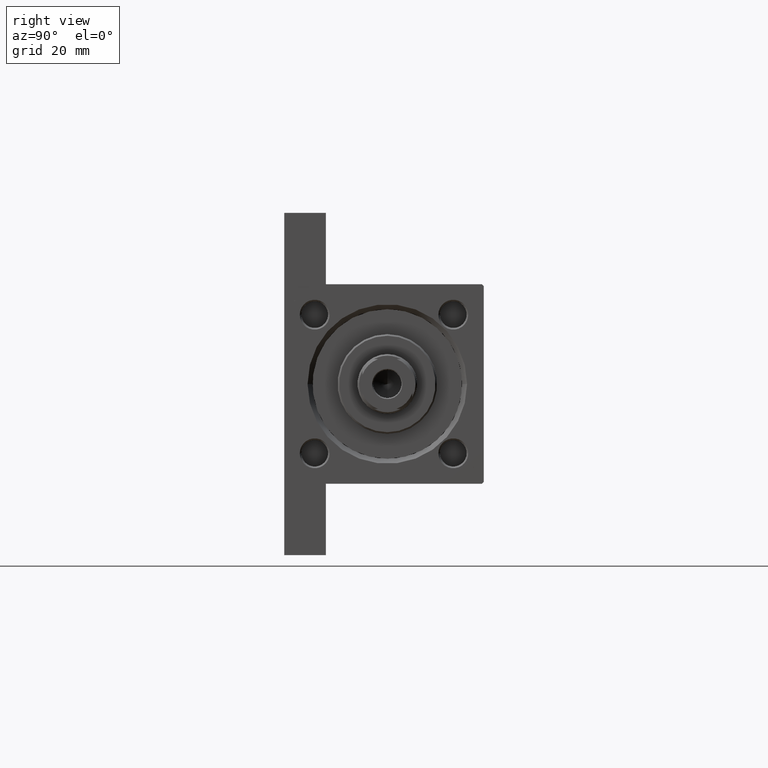
[diagram: clean part render]
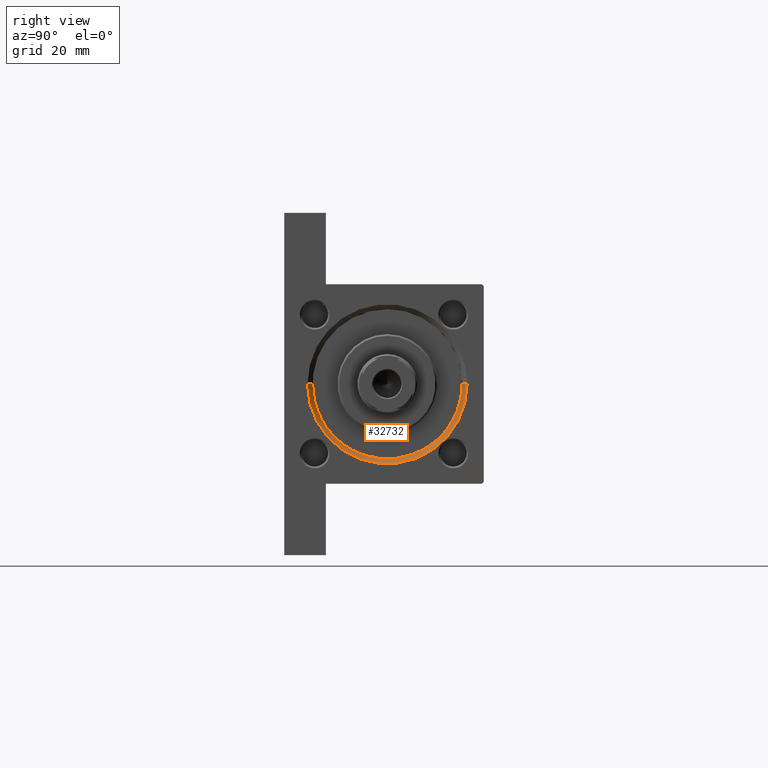
[diagram: same view with one face highlighted and labeled with its STEP entity id]
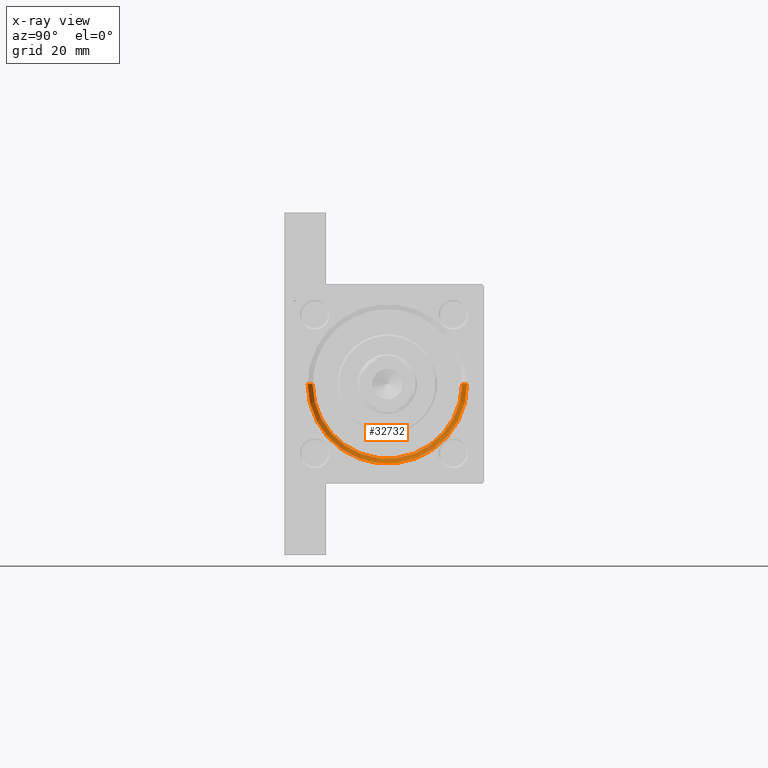
[diagram: x-ray of the same camera — body ghosted, the highlighted face saturated]
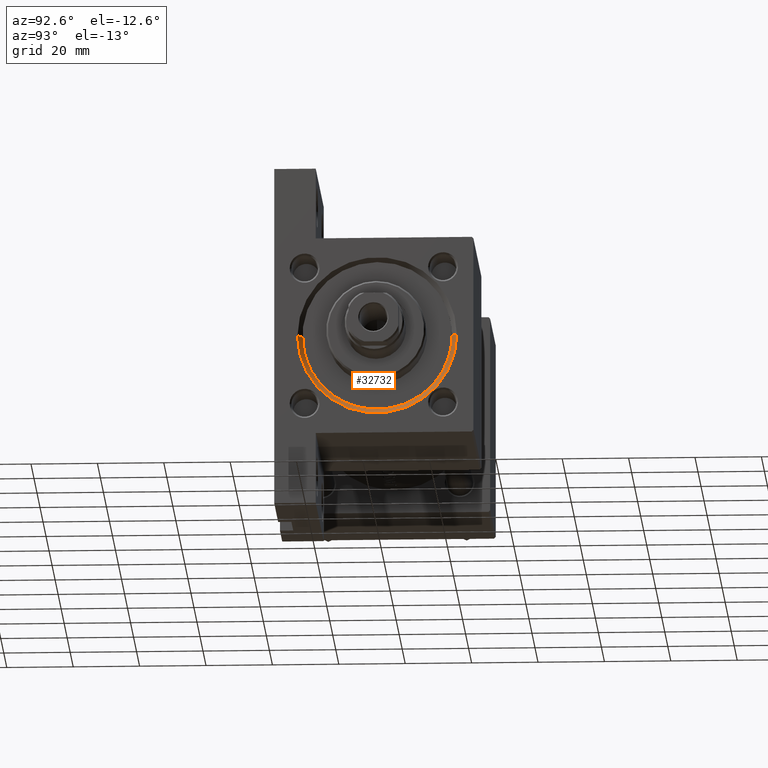
[diagram: same view with one face highlighted and labeled with its STEP entity id]
A machine part, right view. The second image highlights one B-rep face of the part: STEP entity #32732.
The next image is the same camera in x-ray: the body ghosted, the highlighted face saturated — about 0% of this face is hidden behind the body in this view.
A second angle (auxiliary view) of the same face is appended — the face is thin or edge-on in the first view.
In plain terms, the highlighted conical surface has half-angle 45 deg.
Its self-contained STEP definition (entity closure, byte-faithful):
#2103 = CIRCLE ( 'NONE', #28116, 22.50000000000000355 ) ;
#2372 = AXIS2_PLACEMENT_3D ( 'NONE', #14272, #2926, #7377 ) ;
#2926 = DIRECTION ( 'NONE',  ( 1.000000000000000000, 0.000000000000000000, 0.000000000000000000 ) ) ;
#3820 = CARTESIAN_POINT ( 'NONE',  ( 146.4999999999999432, 2.755455298081545172E-15, 23.50000000000001066 ) ) ;
#5311 = AXIS2_PLACEMENT_3D ( 'NONE', #19996, #16059, #30598 ) ;
#5922 = VECTOR ( 'NONE', #7758, 1000.000000000000000 ) ;
#7377 = DIRECTION ( 'NONE',  ( 0.000000000000000000, 0.000000000000000000, -1.000000000000000000 ) ) ;
#7758 = DIRECTION ( 'NONE',  ( 0.7071067811865524577, 8.659560562354874926E-17, 0.7071067811865426878 ) ) ;
#8634 = DIRECTION ( 'NONE',  ( 1.000000000000000000, 0.000000000000000000, 0.000000000000000000 ) ) ;
#11315 = EDGE_CURVE ( 'NONE', #26002, #18845, #2103, .T. ) ;
#11408 = VERTEX_POINT ( 'NONE', #42614 ) ;
#13332 = CARTESIAN_POINT ( 'NONE',  ( 146.4999999999999432, 0.000000000000000000, -21.49999999999999645 ) ) ;
#14272 = CARTESIAN_POINT ( 'NONE',  ( 146.4999999999999432, 0.000000000000000000, 1.000000000000007772 ) ) ;
#16016 = LINE ( 'NONE', #27104, #21188 ) ;
#16059 = DIRECTION ( 'NONE',  ( -1.000000000000000000, 0.000000000000000000, -0.000000000000000000 ) ) ;
#17375 = LINE ( 'NONE', #22996, #5922 ) ;
#18491 = ORIENTED_EDGE ( 'NONE', *, *, #39178, .F. ) ;
#18802 = ORIENTED_EDGE ( 'NONE', *, *, #45373, .F. ) ;
#18845 = VERTEX_POINT ( 'NONE', #3820 ) ;
#19996 = CARTESIAN_POINT ( 'NONE',  ( 148.0000000000000000, 0.000000000000000000, 1.000000000000007772 ) ) ;
#20850 = EDGE_CURVE ( 'NONE', #26002, #24439, #16016, .T. ) ;
#21188 = VECTOR ( 'NONE', #38688, 1000.000000000000000 ) ;
#21546 = CARTESIAN_POINT ( 'NONE',  ( 148.0000000000000000, 0.000000000000000000, -23.00000000000003197 ) ) ;
#21631 = ORIENTED_EDGE ( 'NONE', *, *, #11315, .F. ) ;
#22996 = CARTESIAN_POINT ( 'NONE',  ( 146.4999999999999432, 2.755455298081545172E-15, 23.50000000000001066 ) ) ;
#24371 = ORIENTED_EDGE ( 'NONE', *, *, #20850, .T. ) ;
#24439 = VERTEX_POINT ( 'NONE', #21546 ) ;
#26002 = VERTEX_POINT ( 'NONE', #13332 ) ;
#27104 = CARTESIAN_POINT ( 'NONE',  ( 146.4999999999999432, 0.000000000000000000, -21.49999999999999645 ) ) ;
#28116 = AXIS2_PLACEMENT_3D ( 'NONE', #34735, #8634, #41875 ) ;
#30598 = DIRECTION ( 'NONE',  ( 0.000000000000000000, 0.000000000000000000, 1.000000000000000000 ) ) ;
#32732 = ADVANCED_FACE ( 'NONE', ( #33734 ), #37794, .F. ) ;
#33734 = FACE_OUTER_BOUND ( 'NONE', #37558, .T. ) ;
#34415 = CIRCLE ( 'NONE', #5311, 24.00000000000003908 ) ;
#34735 = CARTESIAN_POINT ( 'NONE',  ( 146.4999999999999432, 0.000000000000000000, 1.000000000000007772 ) ) ;
#37558 = EDGE_LOOP ( 'NONE', ( #18491, #21631, #24371, #18802 ) ) ;
#37794 = CONICAL_SURFACE ( 'NONE', #2372, 22.50000000000000355, 0.7853981633974415066 ) ;
#38688 = DIRECTION ( 'NONE',  ( 0.7071067811865524577, 0.000000000000000000, -0.7071067811865426878 ) ) ;
#39178 = EDGE_CURVE ( 'NONE', #18845, #11408, #17375, .T. ) ;
#41875 = DIRECTION ( 'NONE',  ( 0.000000000000000000, 0.000000000000000000, 1.000000000000000000 ) ) ;
#42614 = CARTESIAN_POINT ( 'NONE',  ( 148.0000000000000000, 2.939152317953652628E-15, 25.00000000000004619 ) ) ;
#45373 = EDGE_CURVE ( 'NONE', #11408, #24439, #34415, .T. ) ;